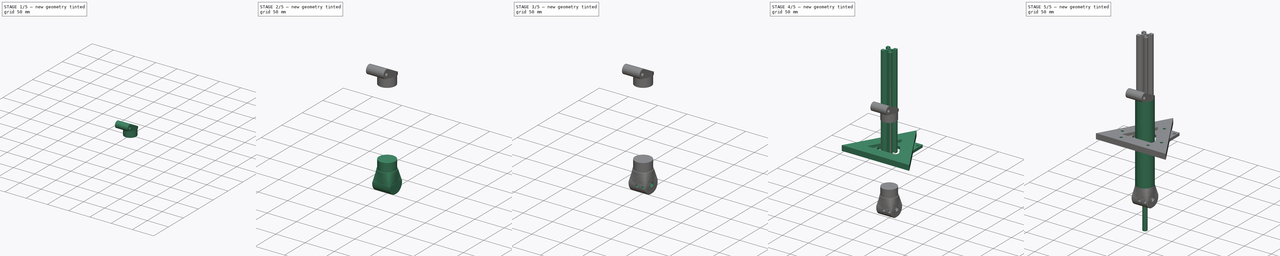
[diagram: build sequence overview — one tinted view per stage of 5, left to right]
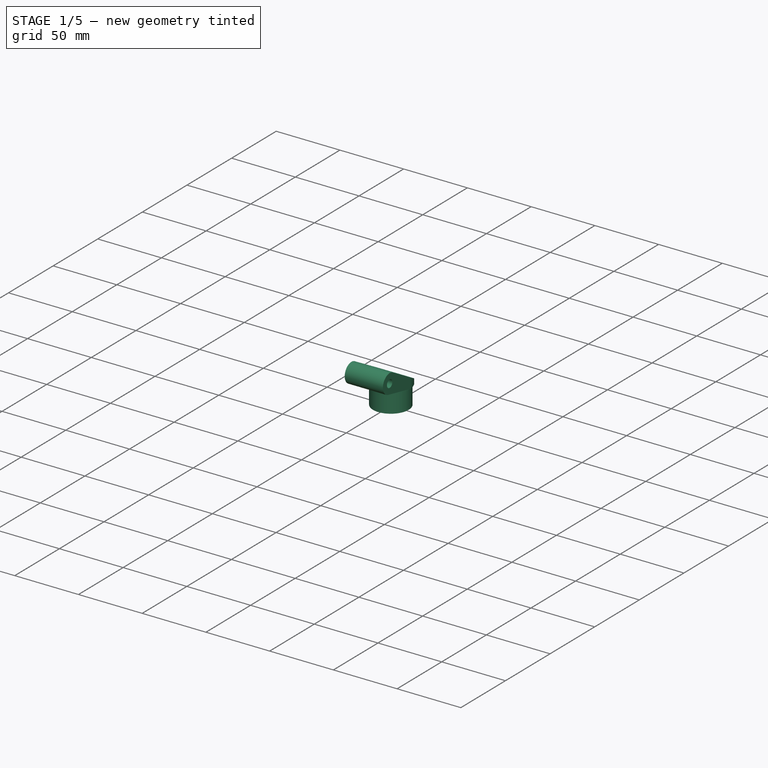
[diagram: stage 1 of 5 — iso view after this stage's code; geometry added in this stage tinted green]
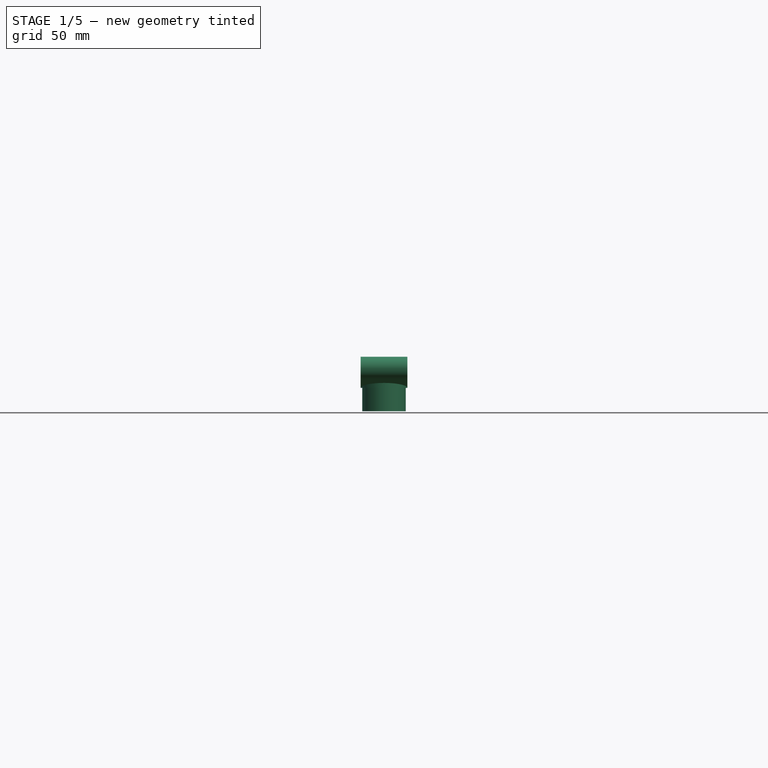
[diagram: stage 1 of 5 — front view after this stage's code; geometry added in this stage tinted green]
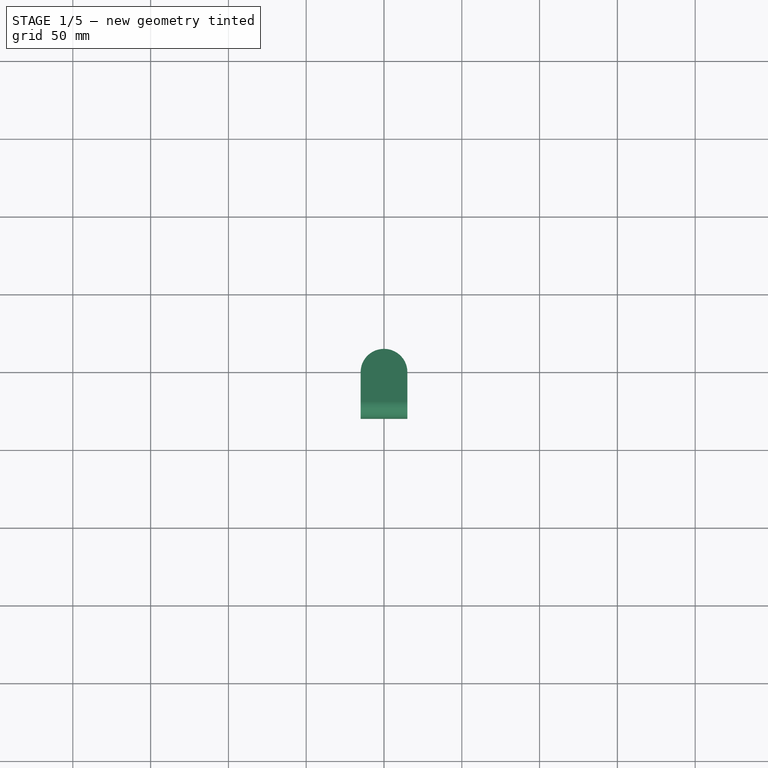
[diagram: stage 1 of 5 — top view after this stage's code; geometry added in this stage tinted green]
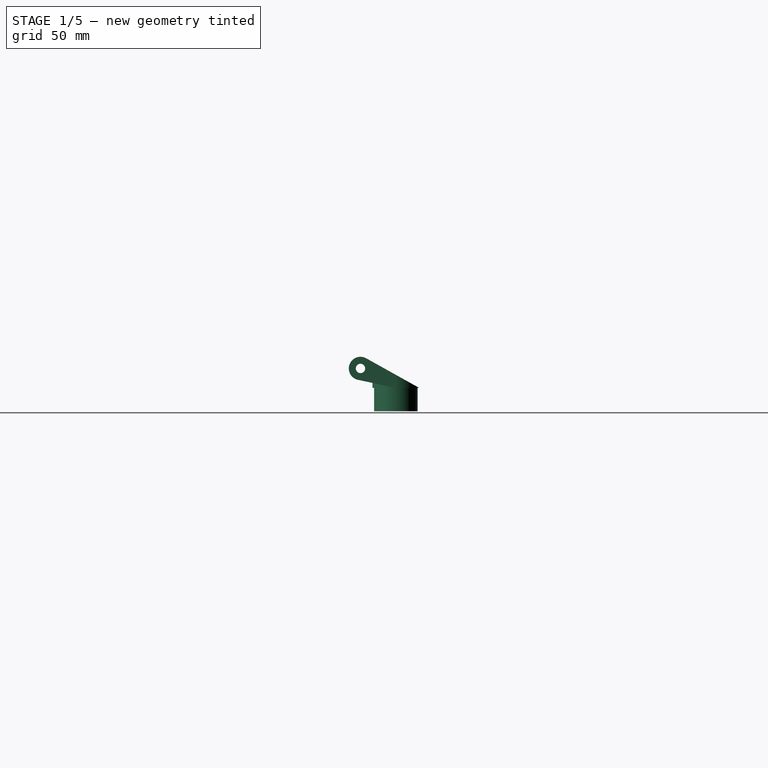
[diagram: stage 1 of 5 — right view after this stage's code; geometry added in this stage tinted green]
FCSTD DOCUMENT  (FreeCAD 1.0R38641 +468 (Git))
Label: main
License: All rights reserved
LicenseURL: https://en.wikipedia.org/wiki/All_rights_reserved
objects: Sketcher::SketchObject×17, PartDesign::Pad×10, PartDesign::Body×7, PartDesign::Plane×6, PartDesign::Pocket×4, App::Part×4, PartDesign::ShapeBinder×2, PartDesign::Chamfer×2, Spreadsheet::Sheet×1, PartDesign::AdditiveLoft×1, PartDesign::Fillet×1, PartDesign::SubtractiveBox×1, PartDesign::PolarPattern×1
note: 108 computed .brp shape members not serialized (recipe doc carries the construction recipe); baked Part::Feature solids carry a one-line shape summary decoded from their .brp

FEATURE [PartDesign::Body] Body001  label="tube_bicep"
  AllowCompound = false
  Group = -> [Sketch001,Pad001]
  Origin = -> Origin001
  Tip = -> Pad001
FEATURE [PartDesign::ShapeBinder] ReferencePad001
  Placement = pos=(0,0,73) rot=(0,0,1;0rad)
  Support = -> [Pad001]
  TraceSupport = false
FEATURE [PartDesign::Plane] DatumPlane
  AttachmentSupport = -> [ReferencePad001]
  Length = 61.3058
  MapMode = 5
  Placement = pos=(0,0,73) rot=(0,0,1;0rad)
  ResizeMode = 0
  Width = 75.2168
FEATURE [Sketcher::SketchObject] Sketch002
  ArcFitTolerance = 0
  AttachmentSupport = -> [DatumPlane]
  FullyConstrained = true
  MakeInternals = false
  MapMode = 5
  Placement = pos=(0,0,73) rot=(0,0,1;0rad)
  expr: Constraints[1] = <<ss>>.id_rf
  sketch-geometry (1):
    g0: Circle CenterX=0 CenterY=0 CenterZ=0 NormalX=0 NormalY=0 NormalZ=1 AngleXU=0 Radius=13.975
  constraints (2):
    c: Coincident(g0,g-1)
    c: Diameter(g0) = 27.95
FEATURE [PartDesign::Pad] Pad002
  Direction = (0,0,1)
  Length = 15
  Length2 = 10
  Placement = pos=(0,0,73) rot=(0,0,1;0rad)
  Profile = -> Sketch002
  ReferenceAxis = -> Sketch002 [N_Axis]
  Reversed = true
  Suppressed = false
  Type = 0
FEATURE [Sketcher::SketchObject] Sketch003
  ArcFitTolerance = 0
  AttachmentSupport = -> [DatumPlane]
  FullyConstrained = true
  MakeInternals = false
  MapMode = 5
  Placement = pos=(0,0,73) rot=(0,0,1;0rad)
  expr: Constraints[1] = <<ss>>.od_rf
  sketch-geometry (1):
    g0: Circle CenterX=0 CenterY=0 CenterZ=0 NormalX=0 NormalY=0 NormalZ=1 AngleXU=0 Radius=15
  constraints (2):
    c: Coincident(g0,g-1)
    c: Diameter(g0) = 30
FEATURE [PartDesign::Pad] Pad003
  BaseFeature = -> Pad002
  Direction = (0,0,1)
  Length = 25
  Length2 = 10
  Placement = pos=(0,0,73) rot=(0,0,1;0rad)
  Profile = -> Sketch003
  ReferenceAxis = -> Sketch003 [N_Axis]
  Suppressed = false
  Type = 0
  expr: Length = <<ss>>.end_rf
FEATURE [PartDesign::Plane] DatumPlane001
  AttachmentOffset = pos=(0,0,0) rot=(0,1,0;1.5708rad)
  AttachmentSupport = -> [Pad003]
  Length = 138.272
  MapMode = 45
  Placement = pos=(-1.8e-15,1e-16,85.5) rot=(0,1,0;1.5708rad)
  ResizeMode = 0
  Width = 81.4772
FEATURE [Sketcher::SketchObject] Sketch004
  ArcFitTolerance = 0
  AttachmentSupport = -> [DatumPlane001]
  ExternalGeometry = -> [Pad003]
  FullyConstrained = false
  MakeInternals = false
  MapMode = 5
  Placement = pos=(-1.8e-15,1e-16,85.5) rot=(0,1,0;1.5708rad)
  sketch-geometry (6):
    g0: Circle CenterX=0 CenterY=-22.7402 CenterZ=0 NormalX=0 NormalY=0 NormalZ=1 AngleXU=0 Radius=3
    g1: ArcOfCircle CenterX=0 CenterY=-22.7402 CenterZ=0 NormalX=0 NormalY=0 NormalZ=1 AngleXU=0 Radius=7.5 StartAngle=2.63197 EndAngle=6.07379
    g2: LineSegment StartX=-6.54695 StartY=-19.0813 StartZ=0 EndX=4.11697 EndY=0 EndZ=0
    g3: LineSegment StartX=4.11697 StartY=0 StartZ=0 EndX=12.5 EndY=0 EndZ=0
    g4: LineSegment StartX=7.33618 StartY=-24.2992 StartZ=0 EndX=12.5 EndY=0 EndZ=0
    g5: LineSegment [constr] StartX=12.5 StartY=15 StartZ=0 EndX=-6.54695 EndY=-19.0813 EndZ=0
  constraints (14):
    c: PointOnObject(g0,g-2)
    c: Diameter(g0) = 6
    c: Coincident(g1,g0)
    c: Diameter(g1) = 15
    c: Tangent(g1,g2) = 1.5708
    c: Coincident(g2,g3)
    c: Horizontal(g3)
    c: PointOnObject(g2,g-1)
    c: Tangent(g1,g4) = -1.5708
    c: Coincident(g4,g3)
    c: PointOnObject(g3,g-5)
    c: Coincident(g5,g-4)
    c: Coincident(g5,g1)
    c: PointOnObject(g2,g5)
FEATURE [PartDesign::Pad] Pad004
  BaseFeature = -> Pad003
  Direction = (1,0,2e-16)
  Length = 30
  Length2 = 10
  Midplane = true
  Placement = pos=(0,0,73) rot=(0,0,1;0rad)
  Profile = -> Sketch004
  ReferenceAxis = -> Sketch004 [N_Axis]
  Suppressed = false
  Type = 0
  expr: Length = <<ss>>.od_rf
FEATURE [PartDesign::SubtractiveBox] Box
  AttacherType = Attacher::AttachEngine3D
  AttachmentOffset = pos=(-23,-39,0) rot=(0,0,1;0rad)
  AttachmentSupport = -> [Pad004]
  BaseFeature = -> Pad004
  Height = 44
  Length = 44
  MapMode = 5
  Placement = pos=(-23,-30.4742,98.4141) rot=(-1,0,0;0.509626rad)
  Refine = true
  Suppressed = false
  Width = 61
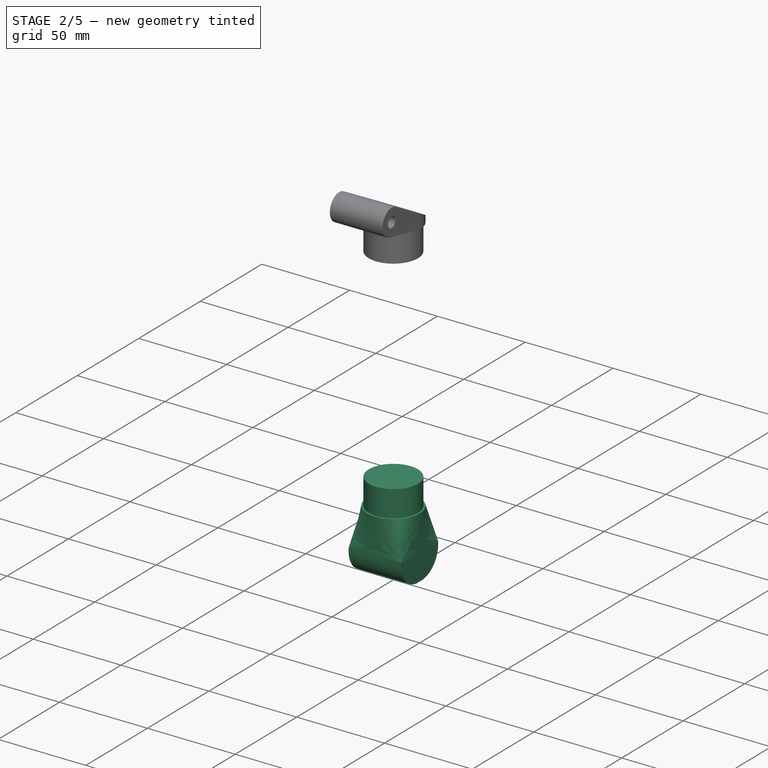
[diagram: stage 2 of 5 — iso view after this stage's code; geometry added in this stage tinted green]
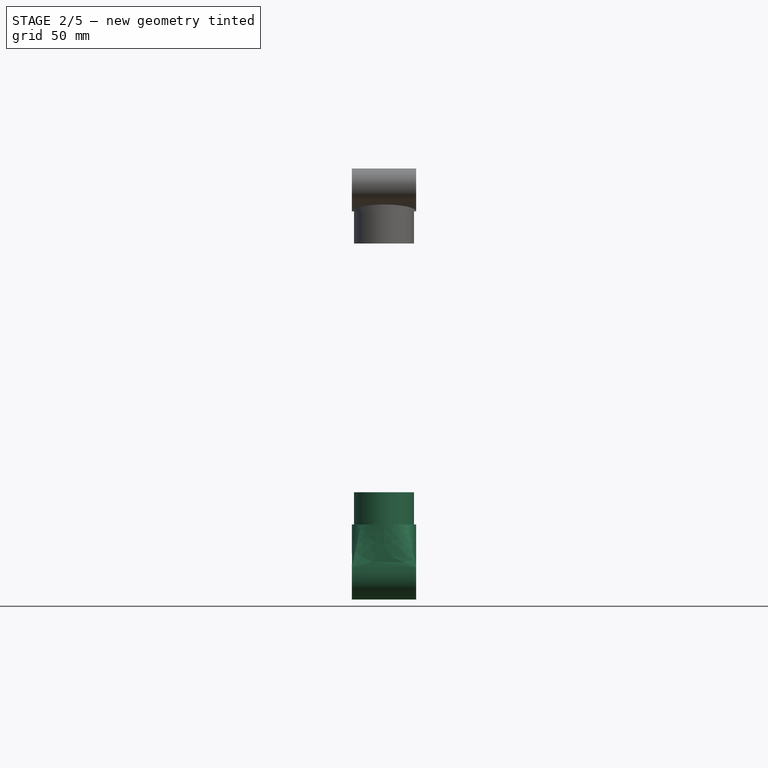
[diagram: stage 2 of 5 — front view after this stage's code; geometry added in this stage tinted green]
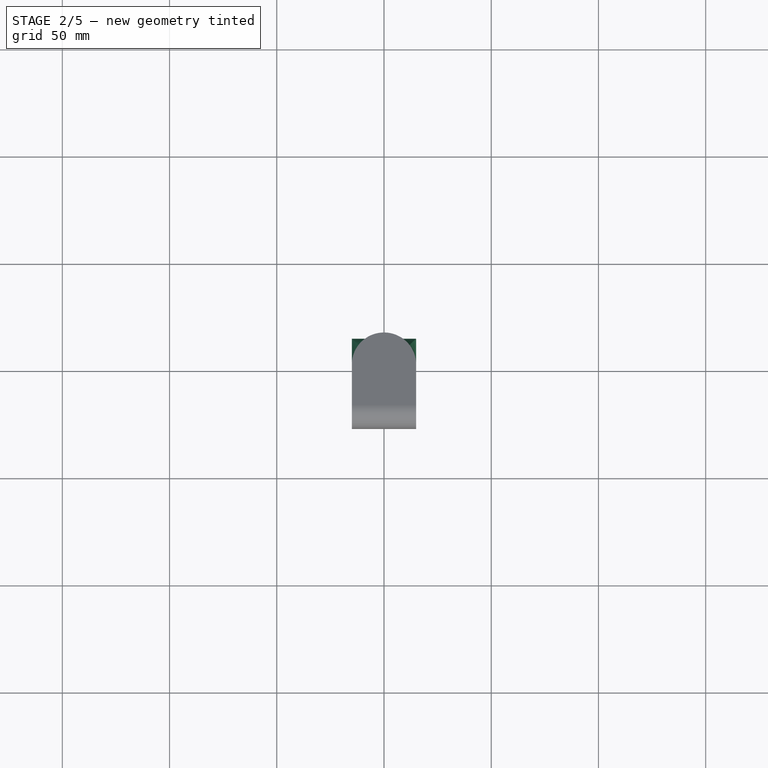
[diagram: stage 2 of 5 — top view after this stage's code; geometry added in this stage tinted green]
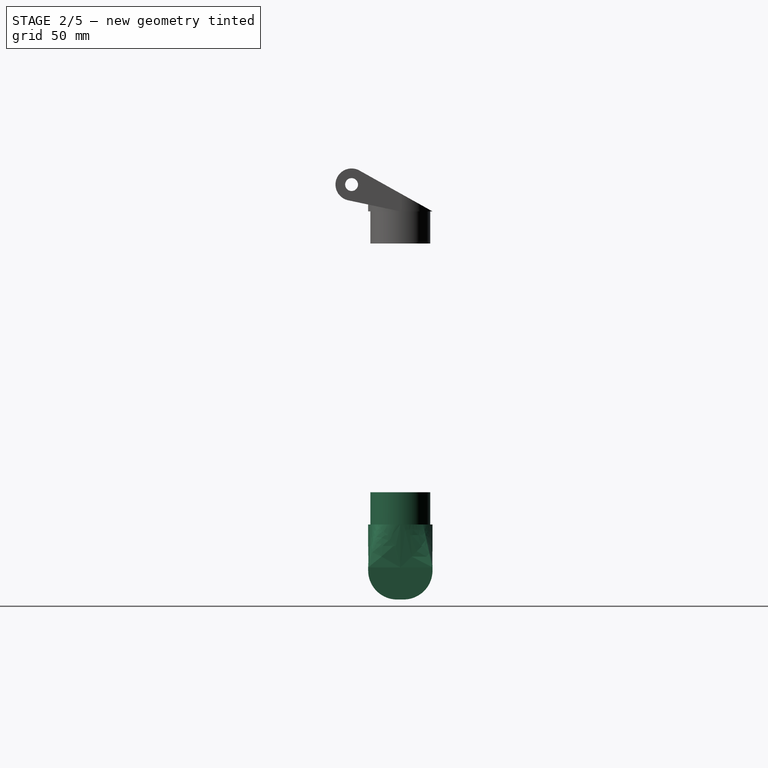
[diagram: stage 2 of 5 — right view after this stage's code; geometry added in this stage tinted green]
FEATURE [PartDesign::ShapeBinder] ReferencePad002
  Placement = pos=(0,0,-73) rot=(0,0,1;0rad)
  Support = -> [Pad001]
  TraceSupport = false
FEATURE [PartDesign::Plane] DatumPlane002
  AttachmentSupport = -> [ReferencePad002]
  Length = 60
  MapMode = 5
  Placement = pos=(0,0,-73) rot=(1,0,0;3.14159rad)
  ResizeMode = 0
  Width = 60
FEATURE [Sketcher::SketchObject] Sketch005
  ArcFitTolerance = 0
  AttachmentSupport = -> [DatumPlane002]
  FullyConstrained = true
  MakeInternals = false
  MapMode = 5
  Placement = pos=(0,0,-73) rot=(1,0,0;3.14159rad)
  expr: Constraints[1] = <<ss>>.id_rf
  sketch-geometry (1):
    g0: Circle CenterX=0 CenterY=0 CenterZ=0 NormalX=0 NormalY=0 NormalZ=1 AngleXU=0 Radius=13.975
  constraints (2):
    c: Coincident(g0,g-1)
    c: Diameter(g0) = 27.95
FEATURE [PartDesign::Pad] Pad005
  Direction = (0,0,-1)
  Length = 15
  Length2 = 10
  Placement = pos=(0,0,-73) rot=(1,0,0;3.14159rad)
  Profile = -> Sketch005
  ReferenceAxis = -> Sketch005 [N_Axis]
  Reversed = true
  Suppressed = false
  Type = 0
FEATURE [Sketcher::SketchObject] Sketch006
  ArcFitTolerance = 0
  AttachmentSupport = -> [DatumPlane002]
  FullyConstrained = true
  MakeInternals = false
  MapMode = 5
  Placement = pos=(0,0,-73) rot=(1,0,0;3.14159rad)
  expr: Constraints[1] = <<ss>>.od_rf
  sketch-geometry (1):
    g0: Circle CenterX=0 CenterY=0 CenterZ=0 NormalX=0 NormalY=0 NormalZ=1 AngleXU=0 Radius=15
  constraints (2):
    c: Coincident(g0,g-1)
    c: Diameter(g0) = 30
FEATURE [PartDesign::Plane] DatumPlane003
  AttachmentOffset = pos=(0,0,20) rot=(0,0,1;0rad)
  AttachmentSupport = -> [DatumPlane002]
  Length = 60
  MapMode = 5
  Placement = pos=(0,0,-93) rot=(1,0,0;3.14159rad)
  ResizeMode = 0
  Width = 60
FEATURE [Sketcher::SketchObject] Sketch007
  ArcFitTolerance = 0
  AttachmentSupport = -> [DatumPlane003]
  FullyConstrained = true
  MakeInternals = false
  MapMode = 5
  Placement = pos=(0,0,-93) rot=(1,0,0;3.14159rad)
  expr: Constraints[10] = <<ss>>.od_rf
  expr: Constraints[11] = <<ss>>.od_rf
  sketch-geometry (5):
    g0: LineSegment StartX=-15 StartY=-15 StartZ=0 EndX=-15 EndY=15 EndZ=0
    g1: LineSegment StartX=-15 StartY=15 StartZ=0 EndX=15 EndY=15 EndZ=0
    g2: LineSegment StartX=15 StartY=15 StartZ=0 EndX=15 EndY=-15 EndZ=0
    g3: LineSegment StartX=15 StartY=-15 StartZ=0 EndX=-15 EndY=-15 EndZ=0
    g4: GeomPoint [constr] X=0 Y=0 Z=0
  constraints (12):
    c: Coincident(g0,g1)
    c: Coincident(g1,g2)
    c: Coincident(g2,g3)
    c: Coincident(g3,g0)
    c: Horizontal(g1)
    c: Horizontal(g3)
    c: Vertical(g0)
    c: Vertical(g2)
    c: Symmetric(g1,g0,g4)
    c: Coincident(g4,g-1)
    c: DistanceX(g1,g1) = 30
    c: DistanceY(g2,g2) = 30
FEATURE [PartDesign::AdditiveLoft] AdditiveLoft
  BaseFeature = -> Pad005
  Closed = false
  Placement = pos=(0,0,-73) rot=(1,0,0;3.14159rad)
  Profile = -> Sketch006
  Ruled = false
  Sections = -> [Sketch007]
  Suppressed = false
FEATURE [PartDesign::Pad] Pad006
  BaseFeature = -> AdditiveLoft
  Direction = (0,0,-1)
  Length = 15
  Length2 = 10
  Placement = pos=(0,0,-73) rot=(1,0,0;3.14159rad)
  Profile = -> Sketch007
  ReferenceAxis = -> Sketch007 [N_Axis]
  Suppressed = false
  Type = 0
  expr: Length = <<ss>>.od_rf * 0.5
FEATURE [PartDesign::Fillet] Fillet
  Base = -> Pad006 [Edge25,Edge23]
  BaseFeature = -> Pad006
  Placement = pos=(0,0,-73) rot=(1,0,0;3.14159rad)
  Radius = 13.5
  SupportTransform = false
  Suppressed = false
  UseAllEdges = false
  expr: Radius = <<ss>>.od_rf * 0.45
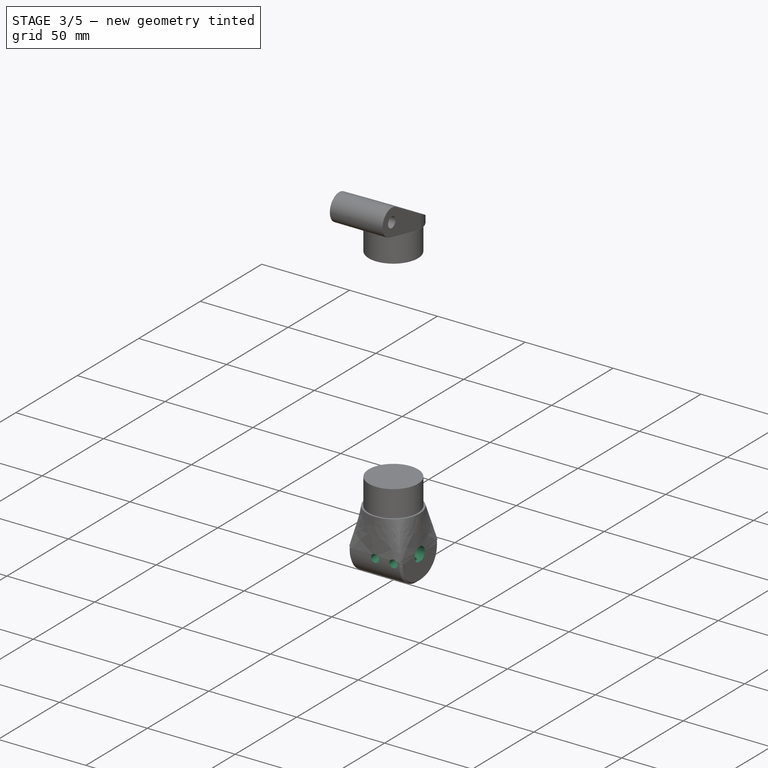
[diagram: stage 3 of 5 — iso view after this stage's code; geometry added in this stage tinted green]
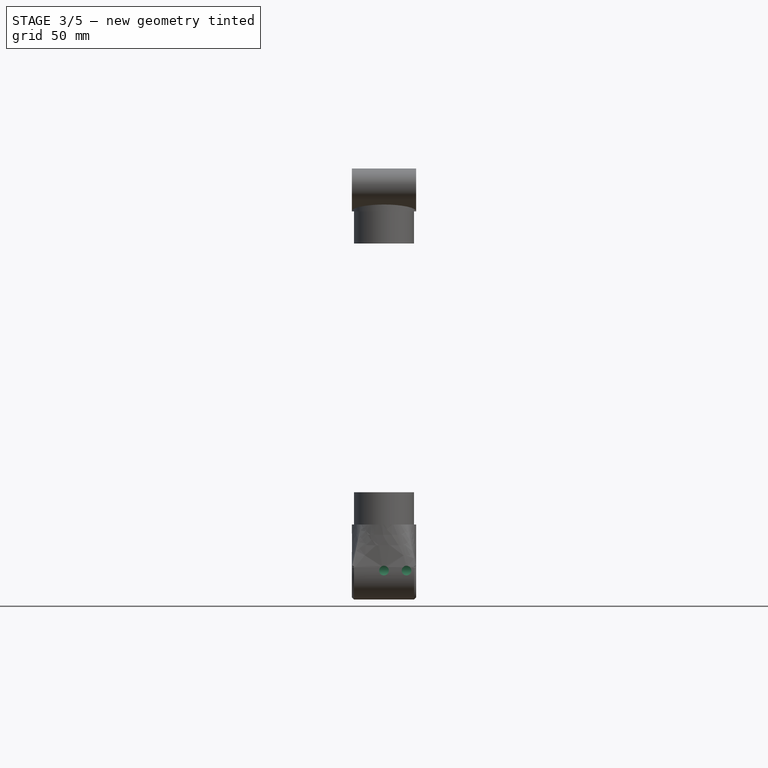
[diagram: stage 3 of 5 — front view after this stage's code; geometry added in this stage tinted green]
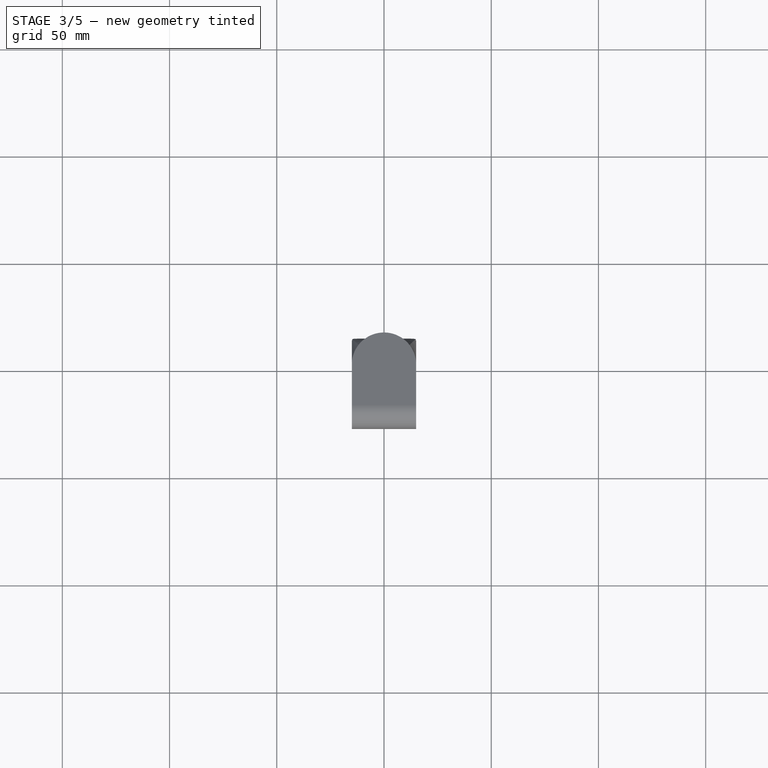
[diagram: stage 3 of 5 — top view after this stage's code; geometry added in this stage tinted green]
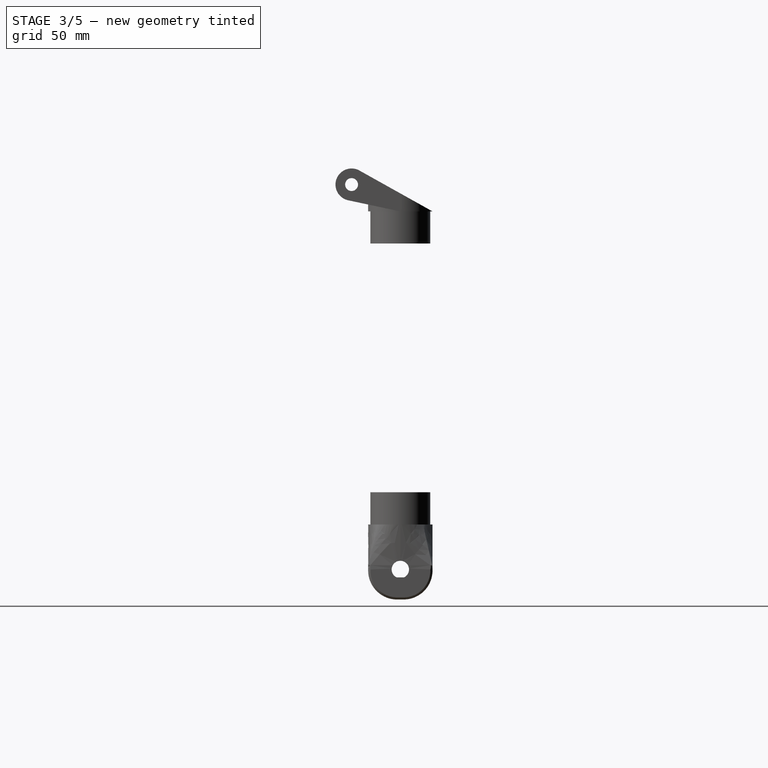
[diagram: stage 3 of 5 — right view after this stage's code; geometry added in this stage tinted green]
FEATURE [PartDesign::Chamfer] Chamfer
  Angle = 45
  Base = -> Fillet [Face1,Face9]
  BaseFeature = -> Fillet
  ChamferType = 0
  FlipDirection = false
  Placement = pos=(0,0,-73) rot=(1,0,0;3.14159rad)
  Size = 1
  Size2 = 1
  SupportTransform = false
  Suppressed = false
  UseAllEdges = false
FEATURE [Sketcher::SketchObject] Sketch008
  ArcFitTolerance = 0
  AttachmentSupport = -> [Chamfer]
  ExternalGeometry = -> [Chamfer]
  FullyConstrained = true
  MakeInternals = false
  MapMode = 5
  Placement = pos=(15,0,-73) rot=(0.57735,-0.57735,0.57735;4.18879rad)
  expr: Constraints[7] = 7.5 / 2 - 0.1
  sketch-geometry (3):
    g0: Circle [constr] CenterX=-1.8e-15 CenterY=21 CenterZ=0 NormalX=0 NormalY=0 NormalZ=1 AngleXU=0 Radius=4.05
    g1: ArcOfCircle CenterX=-1.8e-15 CenterY=21 CenterZ=0 NormalX=0 NormalY=0 NormalZ=1 AngleXU=0 Radius=4.05 StartAngle=2.01898 EndAngle=7.4058
    g2: LineSegment StartX=-1.75499 StartY=24.65 StartZ=0 EndX=1.75499 EndY=24.65 EndZ=0
  constraints (8):
    c: Diameter(g0) = 8.1
    c: PointOnObject(g1,g0)
    c: Coincident(g1,g0)
    c: Coincident(g0,g-4)
    c: Horizontal(g2)
    c: Coincident(g1,g2)
    c: Coincident(g1,g2)
    c: DistanceY(g0,g1) = 3.65
FEATURE [PartDesign::Pocket] Pocket
  BaseFeature = -> Chamfer
  Direction = (-1,0,0)
  Length = 5
  Length2 = 5
  Placement = pos=(0,0,-73) rot=(1,0,0;3.14159rad)
  Profile = -> Sketch008
  ReferenceAxis = -> Sketch008 [N_Axis]
  Suppressed = false
  Type = 1
FEATURE [PartDesign::Body] Body007  label="nema23_holder"
  AllowCompound = false
  Group = -> [Sketch016,Pad009,Chamfer001]
  Origin = -> Origin026
  Tip = -> Chamfer001
FEATURE [PartDesign::Plane] DatumPlane004
  AttachmentSupport = -> [Pocket]
  Length = 60
  MapMode = 5
  Placement = pos=(0,0,-108) rot=(1,0,0;3.14159rad)
  ResizeMode = 0
  Width = 60
FEATURE [Sketcher::SketchObject] Sketch017
  ArcFitTolerance = 1e-06
  AttachmentSupport = -> [DatumPlane004]
  ExternalGeometry = -> [Pocket]
  FullyConstrained = true
  MakeInternals = false
  MapMode = 5
  Placement = pos=(0,0,-108) rot=(1,0,0;3.14159rad)
  sketch-geometry (2):
    g0: Circle CenterX=10.5 CenterY=0 CenterZ=0 NormalX=0 NormalY=0 NormalZ=1 AngleXU=0 Radius=2.25
    g1: Circle CenterX=0 CenterY=0 CenterZ=0 NormalX=0 NormalY=0 NormalZ=1 AngleXU=0 Radius=2.25
  constraints (5):
    c: PointOnObject(g0,g-1)
    c: Equal(g1,g0)
    c: Diameter(g0) = 4.5
    c: Coincident(g1,g-1)
    c: DistanceX(g0,g-3) = 4.5
FEATURE [PartDesign::Pocket] Pocket004
  AlongSketchNormal = false
  BaseFeature = -> Pocket
  Direction = (0,0,1)
  Length = 13
  Length2 = 5
  Placement = pos=(0,0,-73) rot=(1,0,0;3.14159rad)
  Profile = -> Sketch017
  ReferenceAxis = -> Sketch017 [N_Axis]
  Refine = true
  Suppressed = false
  Type = 0
FEATURE [PartDesign::Plane] DatumPlane005
  AttachmentSupport = -> [Pocket004]
  Length = 66.3095
  MapMode = 5
  Placement = pos=(0,-15,-73) rot=(0,0.707107,-0.707107;3.14159rad)
  ResizeMode = 0
  Width = 149.31
FEATURE [Sketcher::SketchObject] Sketch018
  ArcFitTolerance = 1e-06
  AttachmentSupport = -> [DatumPlane005]
  ExternalGeometry = -> [Pocket004]
  FullyConstrained = true
  MakeInternals = false
  MapMode = 5
  Placement = pos=(0,-15,-73) rot=(0,0.707107,-0.707107;3.14159rad)
  sketch-geometry (2):
    g0: Circle CenterX=0 CenterY=21.5 CenterZ=0 NormalX=0 NormalY=0 NormalZ=1 AngleXU=0 Radius=2.25
    g1: Circle CenterX=-10.5 CenterY=21.5 CenterZ=0 NormalX=0 NormalY=0 NormalZ=1 AngleXU=0 Radius=2.25
  constraints (6):
    c: PointOnObject(g0,g-2)
    c: PointOnObject(g0,g-3)
    c: Diameter(g0) = 4.5
    c: PointOnObject(g1,g-3)
    c: Diameter(g1) = 4.5
    c: DistanceX(g-4,g1) = 4.5
FEATURE [PartDesign::Pocket] Pocket005
  BaseFeature = -> Pocket004
  Direction = (0,1,2e-16)
  Length = 12
  Length2 = 5
  Placement = pos=(0,0,-73) rot=(1,0,0;3.14159rad)
  Profile = -> Sketch018
  ReferenceAxis = -> Sketch018 [N_Axis]
  Refine = true
  Suppressed = false
  Type = 0
FEATURE [PartDesign::Body] Body003  label="motor_bicep"
  AllowCompound = false
  Group = -> [DatumPlane002,ReferencePad002,Sketch005,Pad005,Sketch006,DatumPlane003,Sketch007,AdditiveLoft,Pad006,Fillet,Chamfer,Sketch008,Pocket,DatumPlane004,Sketch017,Pocket004,DatumPlane005,Sketch018,Pocket005]
  Origin = -> Origin003
  Tip = -> Pocket005
FEATURE [Sketcher::SketchObject] Sketch019
  ArcFitTolerance = 1e-06
  AttachmentSupport = -> [YZ_Plane002]
  ExternalGeometry = -> [Box]
  FullyConstrained = true
  MakeInternals = false
  MapMode = 5
  Placement = pos=(0,0,0) rot=(0.57735,0.57735,0.57735;2.0944rad)
  constraints (1):
    c: DistanceY(g-4,g-3) = 12.5
FEATURE [PartDesign::Body] Body002  label="end_bicep"
  AllowCompound = false
  Group = -> [DatumPlane,ReferencePad001,Sketch002,Pad002,Sketch003,Pad003,DatumPlane001,Sketch004,Pad004,Box,Sketch019]
  Origin = -> Origin002
  Tip = -> Box
FEATURE [App::Part] Part  label="bicep"
  Group = -> [Body001,Body002,Body003]
  Origin = -> Origin008
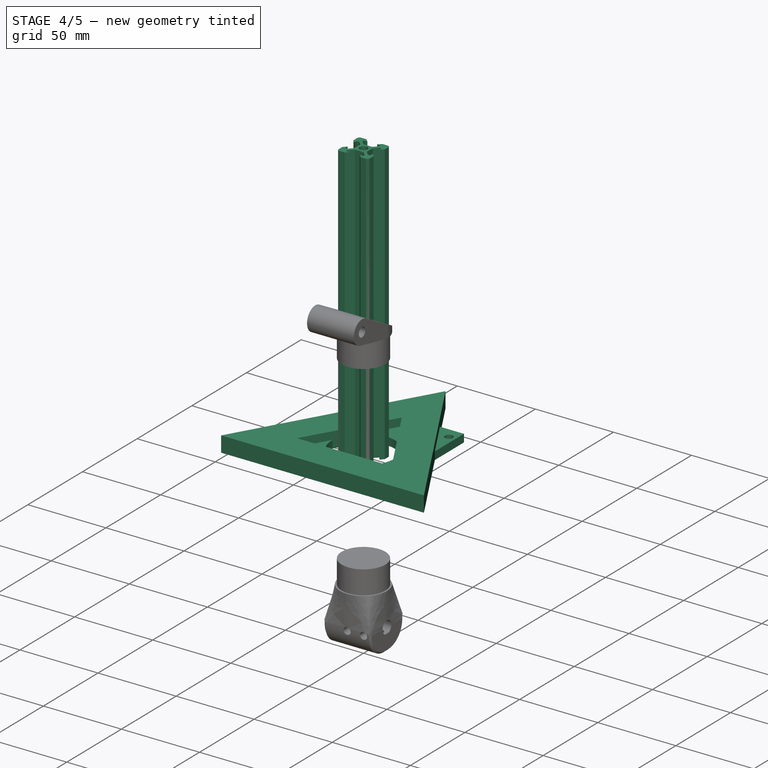
[diagram: stage 4 of 5 — iso view after this stage's code; geometry added in this stage tinted green]
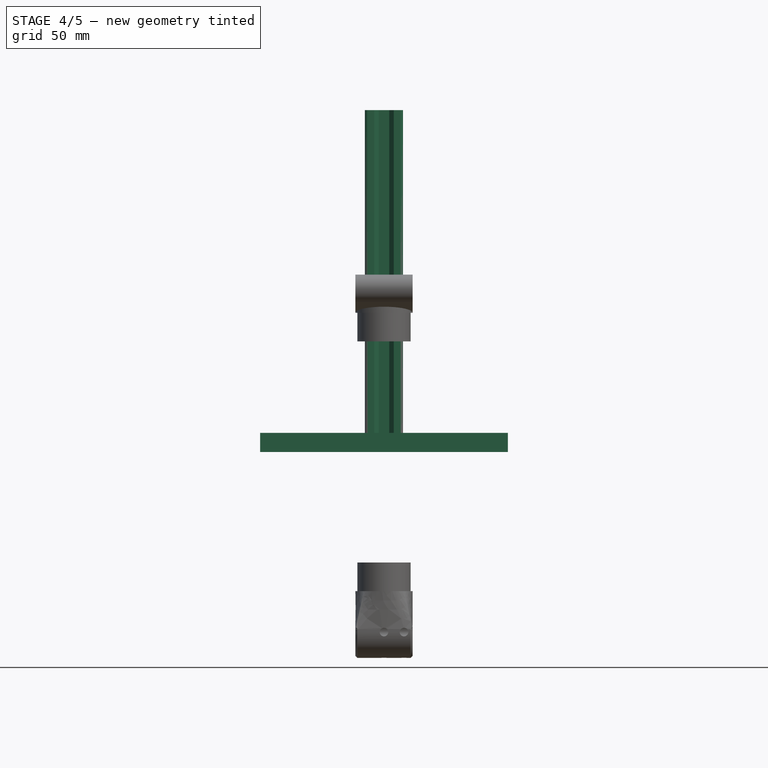
[diagram: stage 4 of 5 — front view after this stage's code; geometry added in this stage tinted green]
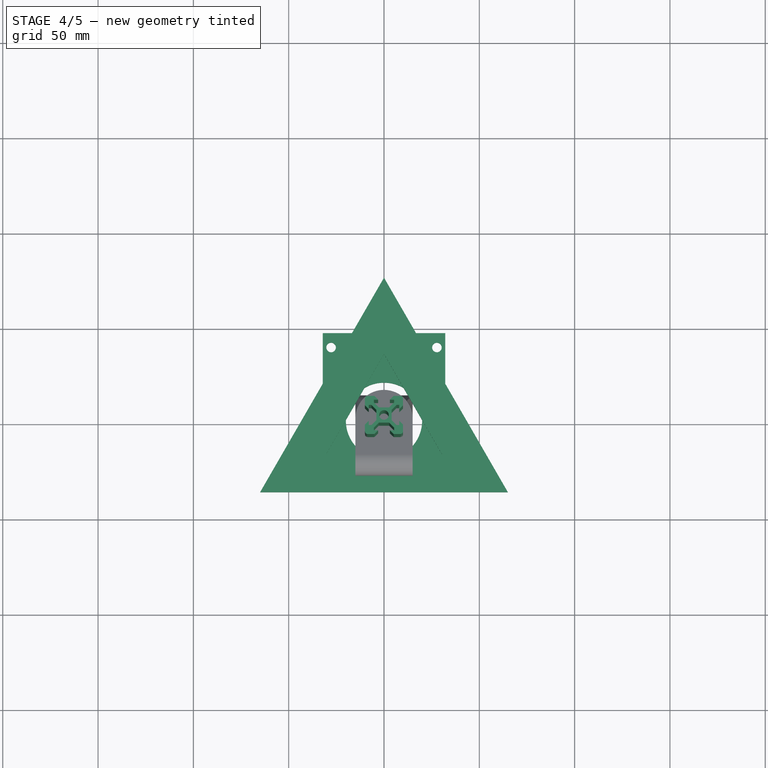
[diagram: stage 4 of 5 — top view after this stage's code; geometry added in this stage tinted green]
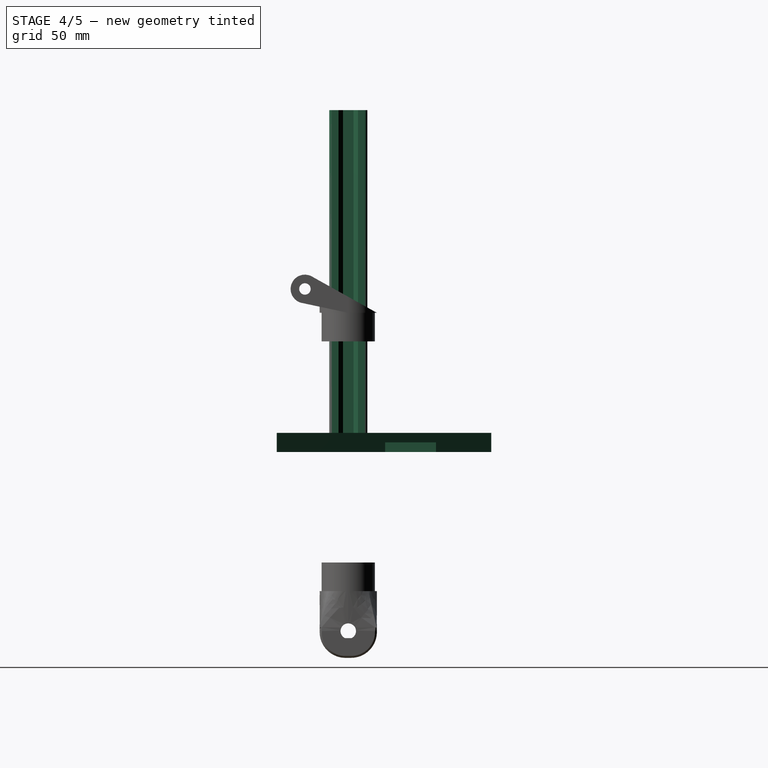
[diagram: stage 4 of 5 — right view after this stage's code; geometry added in this stage tinted green]
FEATURE [App::Part] Part002  label="tool"
  Origin = -> Origin010
FEATURE [Sketcher::SketchObject] Sketch010
  ArcFitTolerance = 1e-06
  AttachmentSupport = -> [XY_Plane011]
  FullyConstrained = true
  MakeInternals = false
  MapMode = 5
FEATURE [PartDesign::Body] Body  label="forearm_axis"
  AllowCompound = false
  Group = -> [Sketch,Pad,Sketch010]
  Origin = -> Origin
  Tip = -> Pad
FEATURE [App::Part] Part001  label="forearm"
  Group = -> [Body]
  Origin = -> Origin009
FEATURE [Sketcher::SketchObject] Sketch011  label="base_triangle_sketch"
  ArcFitTolerance = 1e-06
  AttachmentSupport = -> [XY_Plane012]
  FullyConstrained = true
  MakeInternals = false
  MapMode = 5
  sketch-geometry (12):
    g0: Circle [constr] CenterX=0 CenterY=0 CenterZ=0 NormalX=0 NormalY=0 NormalZ=1 AngleXU=0 Radius=150
    g1: LineSegment StartX=0 StartY=35 StartZ=0 EndX=-30.3109 EndY=-17.5 EndZ=0
    g2: LineSegment StartX=-30.3109 StartY=-17.5 StartZ=0 EndX=30.3109 EndY=-17.5 EndZ=0
    g3: LineSegment StartX=30.3109 StartY=-17.5 StartZ=0 EndX=0 EndY=35 EndZ=0
    g4: Circle [constr] CenterX=0 CenterY=0 CenterZ=0 NormalX=0 NormalY=0 NormalZ=1 AngleXU=0 Radius=35
    g5: LineSegment StartX=0 StartY=75 StartZ=0 EndX=-64.9519 EndY=-37.5 EndZ=0
    g6: LineSegment StartX=-64.9519 StartY=-37.5 StartZ=0 EndX=64.9519 EndY=-37.5 EndZ=0
    g7: LineSegment StartX=64.9519 StartY=-37.5 StartZ=0 EndX=0 EndY=75 EndZ=0
    g8: Circle [constr] CenterX=0 CenterY=0 CenterZ=0 NormalX=0 NormalY=0 NormalZ=1 AngleXU=0 Radius=75
    g9: LineSegment [constr] StartX=0 StartY=35 StartZ=0 EndX=89.6433 EndY=-120.267 EndZ=0
    g10: LineSegment [constr] StartX=30.3109 StartY=-17.5 StartZ=0 EndX=-148.976 EndY=-17.5 EndZ=0
    g11: LineSegment [constr] StartX=-30.3109 StartY=-17.5 StartZ=0 EndX=59.3324 EndY=137.767 EndZ=0
  constraints (34):
    c: Diameter(g0) = 300
    c: Coincident(g0,g-1)
    c: Coincident(g1,g2)
    c: Coincident(g2,g3)
    c: Coincident(g3,g1)
    c: Equal(g1,g2)
    c: Equal(g1,g3)
    c: PointOnObject(g1,g4)
    c: PointOnObject(g2,g4)
    c: PointOnObject(g3,g4)
    c: Coincident(g4,g0)
    c: Coincident(g5,g6)
    c: Coincident(g6,g7)
    c: Coincident(g7,g5)
    c: Equal(g5,g6)
    c: Equal(g5,g7)
    c: PointOnObject(g5,g8)
    c: PointOnObject(g6,g8)
    c: PointOnObject(g7,g8)
    c: Coincident(g8,g0)
    c: PointOnObject(g1,g-2)
    c: PointOnObject(g5,g-2)
    c: Distance(g7,g3) = 20
    c: Coincident(g9,g1)
    c: PointOnObject(g9,g0)
    c: PointOnObject(g2,g9)
    c: Coincident(g10,g2)
    c: PointOnObject(g10,g0)
    c: Horizontal(g10)
    c: Coincident(g11,g1)
    c: PointOnObject(g3,g11)
    c: PointOnObject(g11,g0)
    c: Diameter(g8) = 150
    c: Distance(g9,g9) = 179.287  'vslot_length'
FEATURE [PartDesign::Pad] Pad007
  Direction = (0,0,1)
  Length = 10
  Length2 = 10
  Profile = -> Sketch011
  ReferenceAxis = -> Sketch011 [N_Axis]
  Refine = true
  Suppressed = false
  Type = 0
FEATURE [PartDesign::Body] Body004  label="base_triangle"
  AllowCompound = false
  Group = -> [Sketch011,Pad007,Sketch012,Pocket003,PolarPattern]
  Origin = -> Origin012
  Tip = -> PolarPattern
FEATURE [App::Part] Part003  label="base"
  Group = -> [Body004]
  Origin = -> Origin011
FEATURE [PartDesign::Pad] Pad008
  Direction = (0,0,1)
  Length = 179.287
  Length2 = 10
  Profile = -> Sketch015
  ReferenceAxis = -> Sketch015 [N_Axis]
  Refine = true
  Suppressed = false
  Type = 0
  expr: Length = <<ss>>.vslot_length
FEATURE [PartDesign::Body] Body006  label="vslot"
  AllowCompound = false
  Group = -> [Sketch015,Pad008]
  Origin = -> Origin024
  Tip = -> Pad008
FEATURE [Sketcher::SketchObject] Sketch016
  ArcFitTolerance = 1e-06
  AttachmentSupport = -> [XY_Plane015]
  FullyConstrained = false
  MakeInternals = false
  MapMode = 5
  sketch-geometry (19):
    g0: Circle CenterX=0 CenterY=0 CenterZ=0 NormalX=0 NormalY=0 NormalZ=1 AngleXU=0 Radius=20
    g1: LineSegment [constr] StartX=-23.5 StartY=-23.5 StartZ=0 EndX=23.5 EndY=-23.5 EndZ=0
    g2: LineSegment [constr] StartX=23.5 StartY=-23.5 StartZ=0 EndX=23.5 EndY=23.5 EndZ=0
    g3: LineSegment [constr] StartX=23.5 StartY=23.5 StartZ=0 EndX=-23.5 EndY=23.5 EndZ=0
    g4: LineSegment [constr] StartX=-23.5 StartY=23.5 StartZ=0 EndX=-23.5 EndY=-23.5 EndZ=0
    g5: GeomPoint [constr] X=0 Y=0 Z=0
    g6: Circle CenterX=-23.5 CenterY=23.5 CenterZ=0 NormalX=0 NormalY=0 NormalZ=1 AngleXU=0 Radius=2.5
    g7: Circle CenterX=23.5 CenterY=23.5 CenterZ=0 NormalX=0 NormalY=0 NormalZ=1 AngleXU=0 Radius=2.5
    g8: Circle CenterX=23.5 CenterY=-23.5 CenterZ=0 NormalX=0 NormalY=0 NormalZ=1 AngleXU=0 Radius=2.5
    g9: Circle CenterX=-23.5 CenterY=-23.5 CenterZ=0 NormalX=0 NormalY=0 NormalZ=1 AngleXU=0 Radius=2.5
    g10: LineSegment StartX=-32.1207 StartY=46 StartZ=0 EndX=-32.1207 EndY=-33.5 EndZ=0
    g11: LineSegment StartX=-32.1207 StartY=-33.5 StartZ=0 EndX=32.1207 EndY=-33.5 EndZ=0
    g12: LineSegment StartX=32.1207 StartY=-33.5 StartZ=0 EndX=32.1207 EndY=46 EndZ=0
    g13: LineSegment StartX=32.1207 StartY=46 StartZ=0 EndX=-32.1207 EndY=46 EndZ=0
    g14: GeomPoint [constr] X=0 Y=6.25 Z=0
    g15: LineSegment [constr] StartX=-27.7523 StartY=38.4474 StartZ=0 EndX=27.7523 EndY=38.4474 EndZ=0
    g16: Circle CenterX=-27.7523 CenterY=38.4474 CenterZ=0 NormalX=0 NormalY=0 NormalZ=1 AngleXU=0 Radius=2.5
    g17: Circle CenterX=0 CenterY=38.4474 CenterZ=0 NormalX=0 NormalY=0 NormalZ=1 AngleXU=0 Radius=2.5
    g18: Circle CenterX=27.7523 CenterY=38.4474 CenterZ=0 NormalX=0 NormalY=0 NormalZ=1 AngleXU=0 Radius=2.5
  constraints (39):
    c: Coincident(g0,g-1)
    c: Coincident(g1,g2)
    c: Coincident(g2,g3)
    c: Coincident(g3,g4)
    c: Coincident(g4,g1)
    c: Horizontal(g1)
    c: Horizontal(g3)
    c: Vertical(g2)
    c: Vertical(g4)
    c: Symmetric(g3,g1,g5)
    c: Coincident(g5,g0)
    c: Coincident(g7,g2)
    c: Coincident(g8,g1)
    c: Coincident(g9,g1)
    c: Coincident(g3,g6)
    c: Equal(g1,g2)
    c: Equal(g8,g9)
    c: Equal(g9,g6)
    c: Equal(g6,g7)
    c: Coincident(g10,g11)
    c: Coincident(g11,g12)
    c: Coincident(g12,g13)
    c: Coincident(g13,g10)
    c: Vertical(g10)
    c: Vertical(g12)
    c: Horizontal(g11)
    c: Horizontal(g13)
    c: Symmetric(g12,g10,g14)
    c: PointOnObject(g14,g-2)
    c: DistanceY(g10,g1) = 10
    c: DistanceX(g3,g3) = 47
    c: Diameter(g0) = 40
    c: DistanceY(g2,g12) = 22.5
    c: Diameter(g7) = 5
    c: Symmetric(g15,g15,g-2)
    c: Diameter(g16) = 5
    c: Coincident(g16,g15)
    c: Diameter(g17) = 5
    c: Diameter(g18) = 5
FEATURE [PartDesign::Pad] Pad009
  Direction = (0,0,1)
  Length = 5
  Length2 = 10
  Profile = -> Sketch016
  ReferenceAxis = -> Sketch016 [N_Axis]
  Refine = true
  Suppressed = false
  Type = 0
FEATURE [PartDesign::Chamfer] Chamfer001
  Angle = 45
  Base = -> Pad009 [Edge2,Edge5]
  BaseFeature = -> Pad009
  ChamferType = 0
  FlipDirection = false
  Refine = true
  Size = 5
  Size2 = 1
  SupportTransform = false
  Suppressed = false
  UseAllEdges = false
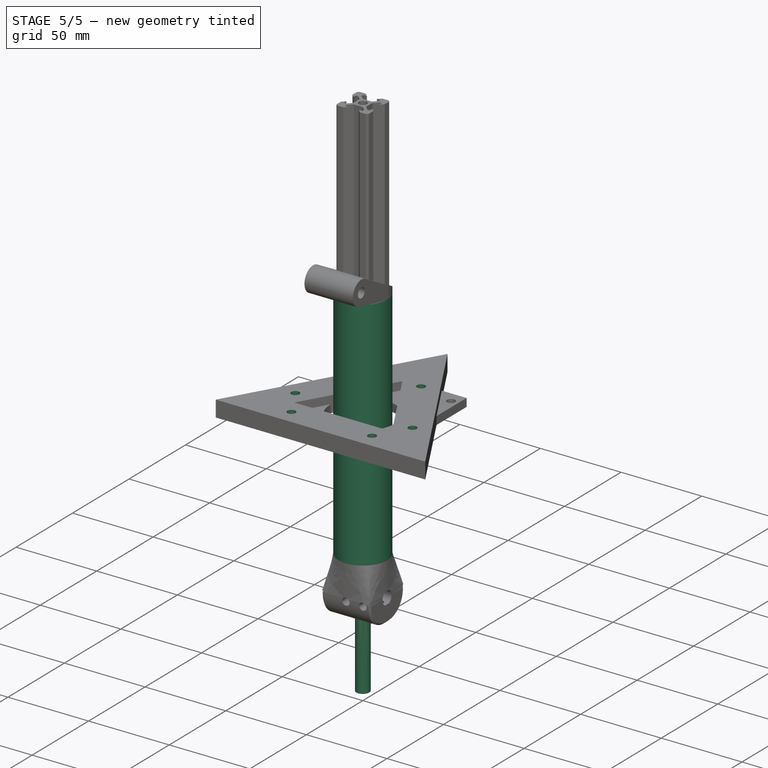
[diagram: stage 5 of 5 — iso view after this stage's code; geometry added in this stage tinted green]
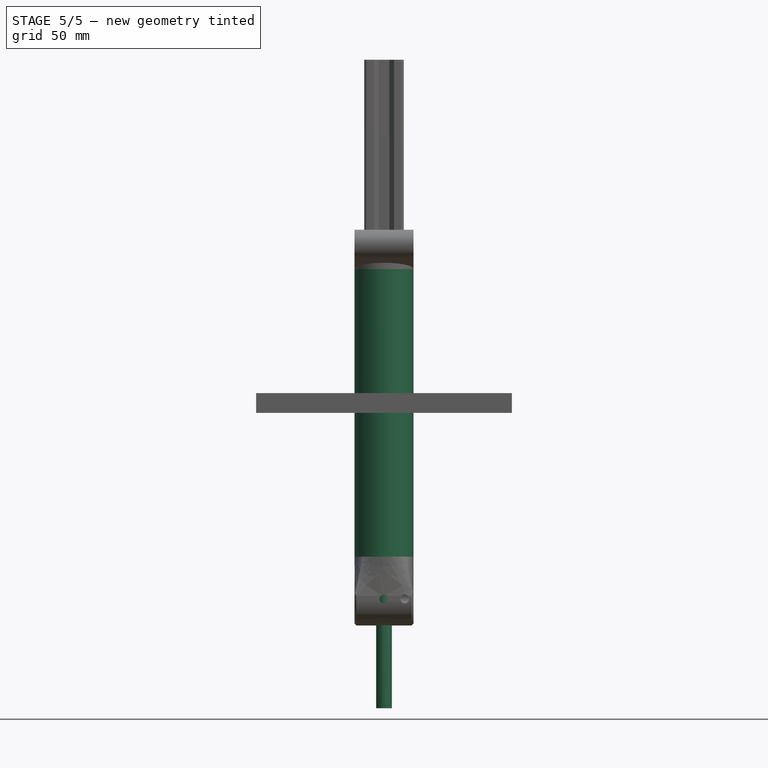
[diagram: stage 5 of 5 — front view after this stage's code; geometry added in this stage tinted green]
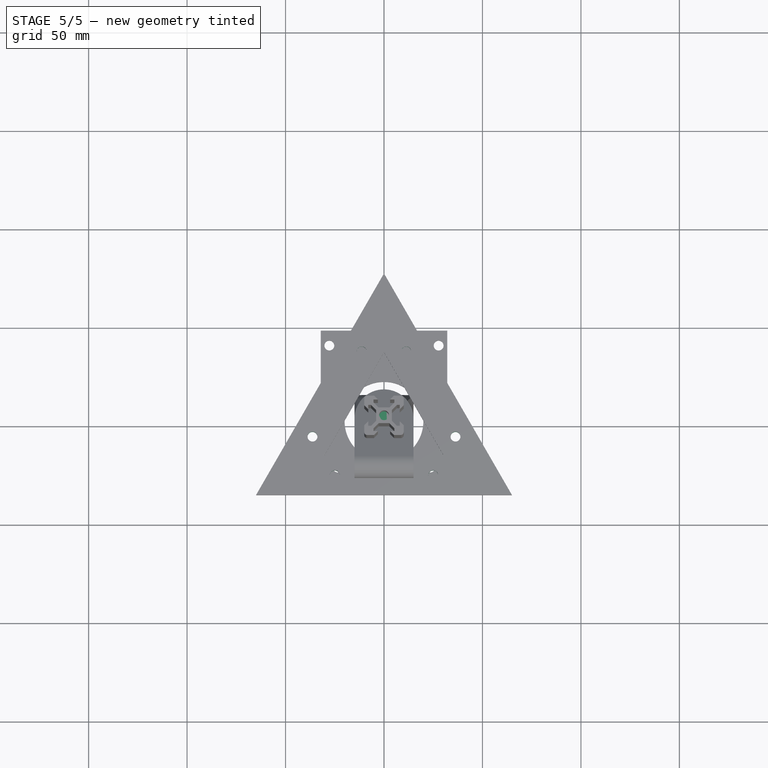
[diagram: stage 5 of 5 — top view after this stage's code; geometry added in this stage tinted green]
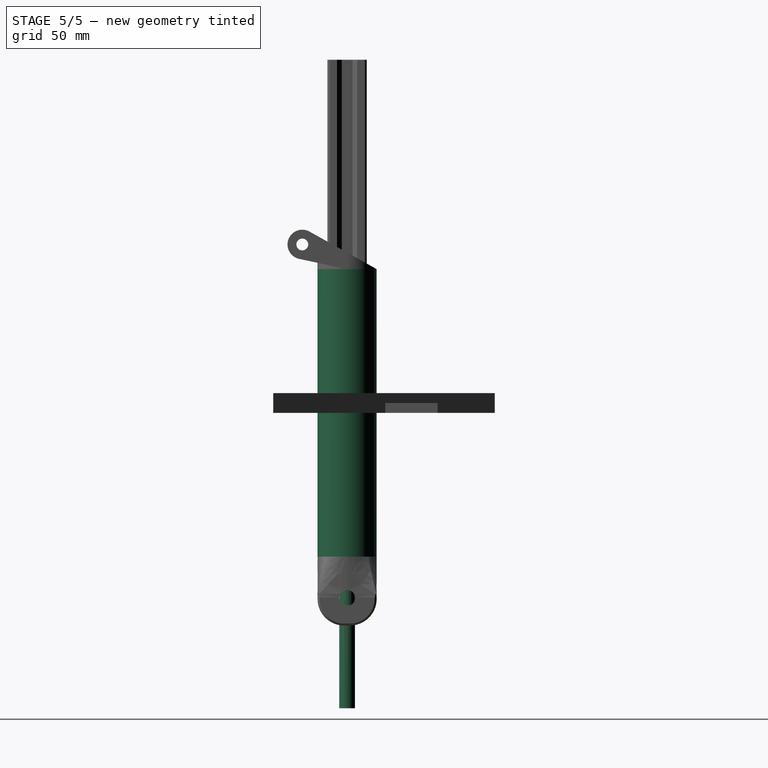
[diagram: stage 5 of 5 — right view after this stage's code; geometry added in this stage tinted green]
FEATURE [Spreadsheet::Sheet] Spreadsheet  label="ss"
  cells = A1='deltabot calculation - values for kinetic | https://www.marginallyclever.com/other/samples/fk-ik-test.html; A3='Base radius (f); B3(f)=300; D3='vslot_length; E3(vslot_length)==<<main>>#<<base_triangle_sketch>>.Constraints.vslot_length; A4='Bicep length (rf); B4(rf)=200; C4='!= tube actual length; A5='Bicep inerdia (od_rf); B5(od_rf)=30; A6='Bicep outerdia (id_rf); B6(id_rf)=27.95; A7='Bicep end length (end_rf); B7(end_rf)=25; A11='Forearm length (re); B11(re)=300; A12='End Effector radius (e); A13='Base to floor distance (b)
FEATURE [Sketcher::SketchObject] Sketch
  ArcFitTolerance = 0
  AttachmentSupport = -> [XY_Plane]
  FullyConstrained = true
  MakeInternals = false
  MapMode = 5
  sketch-geometry (1):
    g0: Circle CenterX=0 CenterY=0 CenterZ=0 NormalX=0 NormalY=0 NormalZ=1 AngleXU=0 Radius=4
  constraints (2):
    c: Coincident(g0,g-1)
    c: Diameter(g0) = 8
FEATURE [PartDesign::Pad] Pad
  Direction = (0,0,1)
  Length = 300
  Length2 = 10
  Midplane = true
  Profile = -> Sketch
  ReferenceAxis = -> Sketch [N_Axis]
  Suppressed = false
  Type = 0
  expr: Length = Spreadsheet.re
FEATURE [Sketcher::SketchObject] Sketch001
  ArcFitTolerance = 0
  AttachmentSupport = -> [XY_Plane001]
  FullyConstrained = true
  MakeInternals = false
  MapMode = 5
  expr: Constraints[1] = Spreadsheet.od_rf
  expr: Constraints[3] = <<ss>>.id_rf
  sketch-geometry (2):
    g0: Circle CenterX=0 CenterY=0 CenterZ=0 NormalX=0 NormalY=0 NormalZ=1 AngleXU=0 Radius=15
    g1: Circle CenterX=0 CenterY=0 CenterZ=0 NormalX=0 NormalY=0 NormalZ=1 AngleXU=0 Radius=13.975
  constraints (4):
    c: Coincident(g0,g-1)
    c: Diameter(g0) = 30
    c: Coincident(g1,g0)
    c: Diameter(g1) = 27.95
FEATURE [PartDesign::Pad] Pad001
  Direction = (0,0,1)
  Length = 146
  Length2 = 10
  Midplane = true
  Profile = -> Sketch001
  ReferenceAxis = -> Sketch001 [N_Axis]
  Suppressed = false
  Type = 0
  expr: Length = <<ss>>.rf - <<ss>>.end_rf - 29
FEATURE [Sketcher::SketchObject] Sketch015
  ArcFitTolerance = 1e-06
  AttachmentSupport = -> [XY_Plane014]
  FullyConstrained = false
  MakeInternals = false
  MapMode = 5
  sketch-geometry (50):
    g0: ArcOfCircle CenterX=0 CenterY=0 CenterZ=0 NormalX=0 NormalY=0 NormalZ=1 AngleXU=0 Radius=2.5 StartAngle=3.14159 EndAngle=6.28319
    g1: LineSegment StartX=-10 StartY=-5.1 StartZ=0 EndX=-10 EndY=-8.5 EndZ=0
    g2: ArcOfCircle CenterX=-8.5 CenterY=-8.5 CenterZ=0 NormalX=0 NormalY=0 NormalZ=1 AngleXU=0 Radius=1.5 StartAngle=3.14159 EndAngle=4.71239
    g3: LineSegment StartX=-8.5 StartY=-10 StartZ=0 EndX=-5.1 EndY=-10 EndZ=0
    g4: LineSegment StartX=-5.1 StartY=-10 StartZ=0 EndX=-3.1 EndY=-8 EndZ=0
    g5: LineSegment StartX=-3.1 StartY=-8 StartZ=0 EndX=-5.3 EndY=-8 EndZ=0
    g6: LineSegment StartX=-5.3 StartY=-8 StartZ=0 EndX=-5.3 EndY=-6.57279 EndZ=0
    g7: LineSegment StartX=-5.3 StartY=-6.57279 StartZ=0 EndX=-2.72721 EndY=-4 EndZ=0
    g8: LineSegment StartX=-2.72721 StartY=-4 StartZ=0 EndX=2.72721 EndY=-4 EndZ=0
    g9: LineSegment StartX=2.72721 StartY=-4 StartZ=0 EndX=5.3 EndY=-6.57279 EndZ=0
    g10: LineSegment StartX=5.3 StartY=-6.57279 StartZ=0 EndX=5.3 EndY=-8 EndZ=0
    g11: LineSegment StartX=5.3 StartY=-8 StartZ=0 EndX=3.1 EndY=-8 EndZ=0
    g12: LineSegment StartX=3.1 StartY=-8 StartZ=0 EndX=5.1 EndY=-10 EndZ=0
    g13: LineSegment StartX=5.1 StartY=-10 StartZ=0 EndX=8.5 EndY=-10 EndZ=0
    g14: ArcOfCircle CenterX=8.5 CenterY=-8.5 CenterZ=0 NormalX=0 NormalY=0 NormalZ=1 AngleXU=0 Radius=1.5 StartAngle=4.71239 EndAngle=6.28319
    g15: LineSegment StartX=10 StartY=-8.5 StartZ=0 EndX=10 EndY=-5.1 EndZ=0
    g16: LineSegment StartX=10 StartY=-5.1 StartZ=0 EndX=8 EndY=-3.1 EndZ=0
    g17: LineSegment StartX=8 StartY=-3.1 StartZ=0 EndX=8 EndY=-5.3 EndZ=0
    g18: LineSegment StartX=8 StartY=-5.3 StartZ=0 EndX=6.57279 EndY=-5.3 EndZ=0
    g19: LineSegment StartX=6.57279 StartY=-5.3 StartZ=0 EndX=4 EndY=-2.72721 EndZ=0
    g20: LineSegment StartX=4 StartY=-2.72721 StartZ=0 EndX=4 EndY=2.72721 EndZ=0
    g21: LineSegment StartX=4 StartY=2.72721 StartZ=0 EndX=6.57279 EndY=5.3 EndZ=0
    g22: LineSegment StartX=6.57279 StartY=5.3 StartZ=0 EndX=8 EndY=5.3 EndZ=0
    g23: LineSegment StartX=8 StartY=5.3 StartZ=0 EndX=8 EndY=3.1 EndZ=0
    g24: LineSegment StartX=8 StartY=3.1 StartZ=0 EndX=10 EndY=5.1 EndZ=0
    g25: LineSegment StartX=10 StartY=5.1 StartZ=0 EndX=10 EndY=8.5 EndZ=0
    g26: ArcOfCircle CenterX=8.5 CenterY=8.5 CenterZ=0 NormalX=0 NormalY=0 NormalZ=1 AngleXU=0 Radius=1.5 StartAngle=0 EndAngle=1.5708
    g27: LineSegment StartX=8.5 StartY=10 StartZ=0 EndX=5.1 EndY=10 EndZ=0
    g28: LineSegment StartX=5.1 StartY=10 StartZ=0 EndX=3.1 EndY=8 EndZ=0
    g29: LineSegment StartX=3.1 StartY=8 StartZ=0 EndX=5.3 EndY=8 EndZ=0
    g30: LineSegment StartX=5.3 StartY=8 StartZ=0 EndX=5.3 EndY=6.57279 EndZ=0
    g31: LineSegment StartX=5.3 StartY=6.57279 StartZ=0 EndX=2.72721 EndY=4 EndZ=0
    g32: LineSegment StartX=2.72721 StartY=4 StartZ=0 EndX=-2.72721 EndY=4 EndZ=0
    g33: LineSegment StartX=-2.72721 StartY=4 StartZ=0 EndX=-5.3 EndY=6.57279 EndZ=0
    g34: LineSegment StartX=-5.3 StartY=6.57279 StartZ=0 EndX=-5.3 EndY=8 EndZ=0
    g35: LineSegment StartX=-5.3 StartY=8 StartZ=0 EndX=-3.1 EndY=8 EndZ=0
    g36: LineSegment StartX=-3.1 StartY=8 StartZ=0 EndX=-5.1 EndY=10 EndZ=0
    g37: LineSegment StartX=-5.1 StartY=10 StartZ=0 EndX=-8.5 EndY=10 EndZ=0
    g38: ArcOfCircle CenterX=-8.5 CenterY=8.5 CenterZ=0 NormalX=0 NormalY=0 NormalZ=1 AngleXU=0 Radius=1.5 StartAngle=1.5708 EndAngle=3.14159
    g39: LineSegment StartX=-10 StartY=8.5 StartZ=0 EndX=-10 EndY=5.1 EndZ=0
    g40: LineSegment StartX=-10 StartY=5.1 StartZ=0 EndX=-8 EndY=3.1 EndZ=0
    g41: LineSegment StartX=-8 StartY=3.1 StartZ=0 EndX=-8 EndY=5.3 EndZ=0
    g42: LineSegment StartX=-8 StartY=5.3 StartZ=0 EndX=-6.57279 EndY=5.3 EndZ=0
    g43: LineSegment StartX=-6.57279 StartY=5.3 StartZ=0 EndX=-4 EndY=2.72721 EndZ=0
    g44: LineSegment StartX=-4 StartY=2.72721 StartZ=0 EndX=-4 EndY=-2.72721 EndZ=0
    g45: LineSegment StartX=-4 StartY=-2.72721 StartZ=0 EndX=-6.57279 EndY=-5.3 EndZ=0
    g46: LineSegment StartX=-6.57279 StartY=-5.3 StartZ=0 EndX=-8 EndY=-5.3 EndZ=0
    g47: LineSegment StartX=-8 StartY=-5.3 StartZ=0 EndX=-8 EndY=-3.1 EndZ=0
    g48: LineSegment StartX=-8 StartY=-3.1 StartZ=0 EndX=-10 EndY=-5.1 EndZ=0
    g49: ArcOfCircle CenterX=0 CenterY=0 CenterZ=0 NormalX=0 NormalY=0 NormalZ=1 AngleXU=0 Radius=2.5 StartAngle=0 EndAngle=3.14159
FEATURE [Sketcher::SketchObject] Sketch012
  ArcFitTolerance = 1e-06
  AttachmentSupport = -> [XY_Plane012]
  ExternalGeometry = -> [Sketch011]
  FullyConstrained = true
  MakeInternals = false
  MapMode = 5
  sketch-geometry (4):
    g0: Circle CenterX=11.3157 CenterY=35.4006 CenterZ=0 NormalX=0 NormalY=0 NormalZ=1 AngleXU=0 Radius=2.5
    g1: LineSegment [constr] StartX=-30.3109 StartY=-17.5 StartZ=0 EndX=32.476 EndY=18.75 EndZ=0
    g2: LineSegment [constr] StartX=23.8157 StartY=13.75 StartZ=0 EndX=11.3157 EndY=35.4006 EndZ=0
    g3: Circle CenterX=36.3157 CenterY=-7.90064 CenterZ=0 NormalX=0 NormalY=0 NormalZ=1 AngleXU=0 Radius=2.5
  constraints (11):
    c: Perpendicular(g-3,g1)
    c: Coincident(g1,g-4)
    c: PointOnObject(g2,g1)
    c: Perpendicular(g1,g2)
    c: PointOnObject(g1,g-3)
    c: Distance(g2,g1) = 10
    c: Coincident(g0,g2)
    c: Symmetric(g0,g3,g2)
    c: Equal(g3,g0)
    c: Diameter(g0) = 5
    c: Distance(g0,g3) = 50
FEATURE [PartDesign::Pocket] Pocket003
  BaseFeature = -> Pad007
  Direction = (0,0,-1)
  Length = 5
  Length2 = 5
  Profile = -> Sketch012
  ReferenceAxis = -> Sketch012 [N_Axis]
  Refine = true
  Reversed = true
  Suppressed = false
  Type = 1
FEATURE [PartDesign::PolarPattern] PolarPattern
  Angle = 360
  Axis = -> Sketch012 [N_Axis]
  BaseFeature = -> Pocket003
  Mode = 0
  Occurrences = 3
  Offset = 120
  Originals = -> [Pocket003]
  Refine = true
  Suppressed = false
  TransformMode = 0
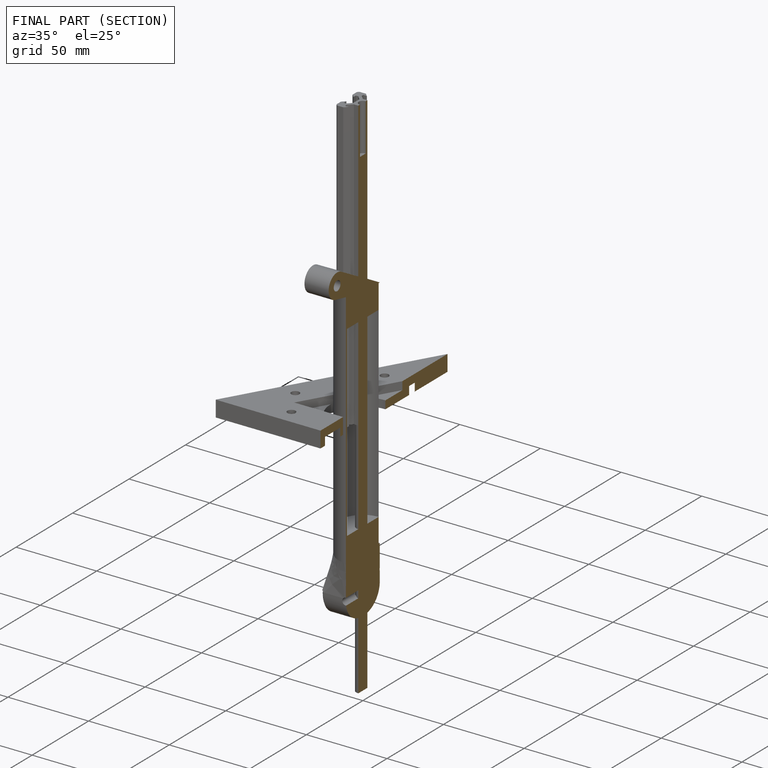
[diagram: finished part — half-section view (interior)]
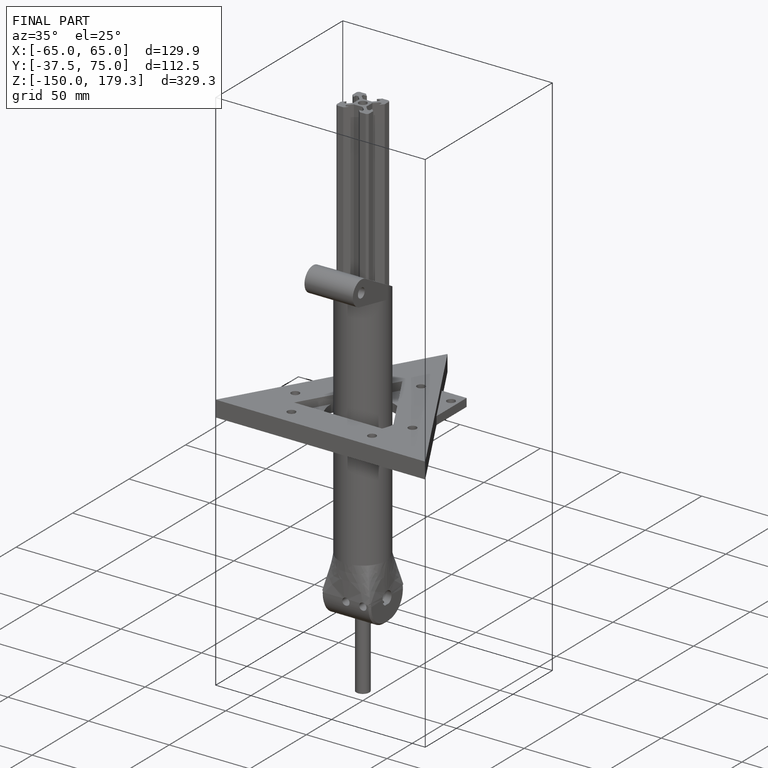
[diagram: finished part — iso view with bounding-box wireframe]
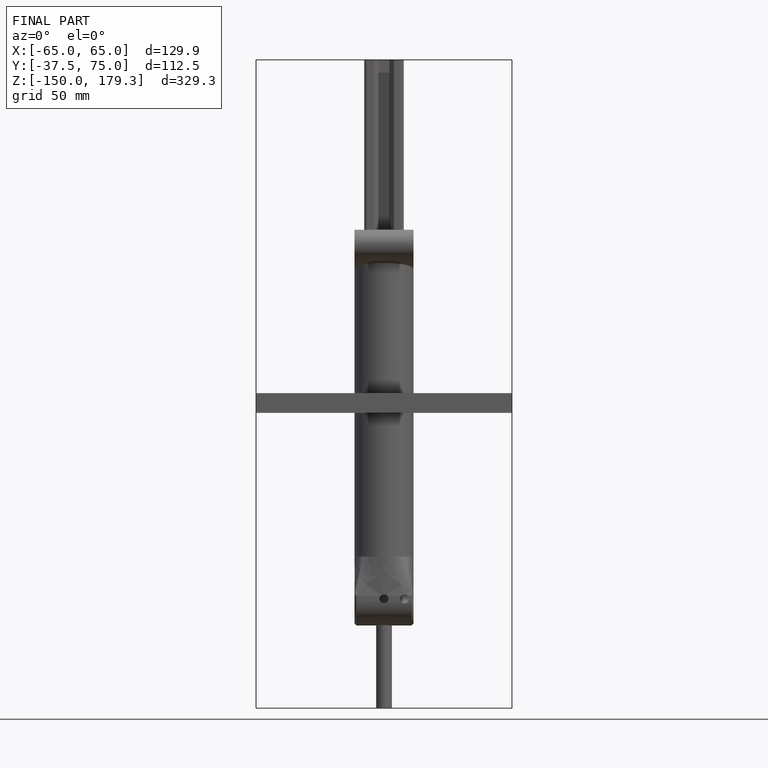
[diagram: finished part — front view with bounding-box wireframe]
